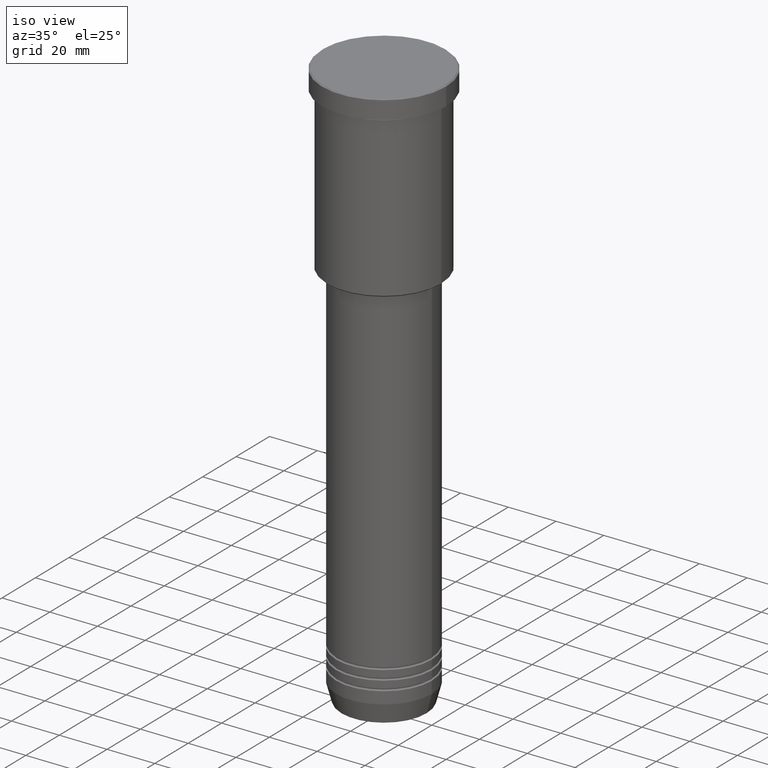
[diagram: clean part render]
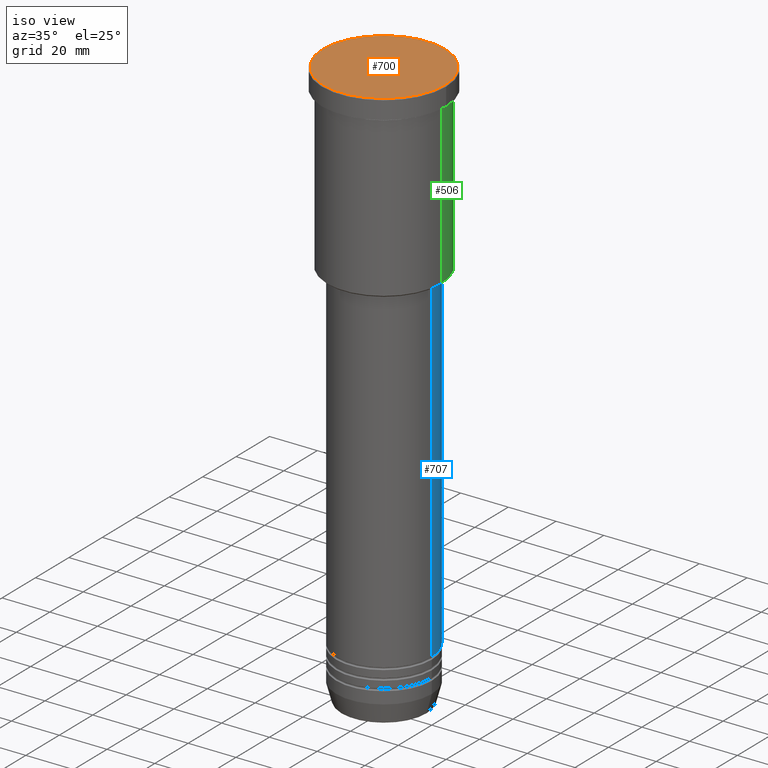
[diagram: same view with three faces highlighted in distinct colors, each labeled with its STEP entity id]
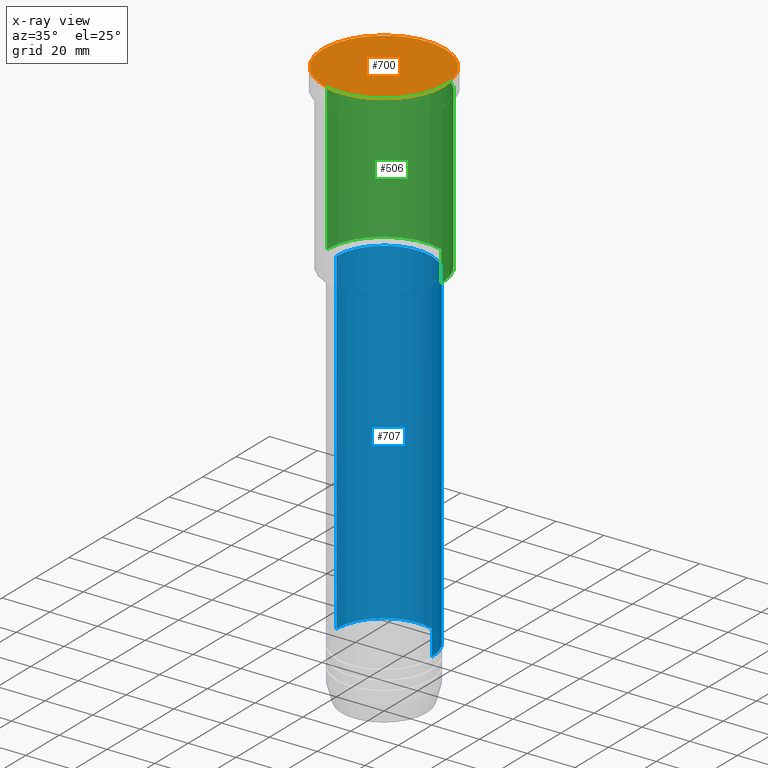
[diagram: x-ray of the same camera — body ghosted, the three highlighted faces saturated]
A machine part, iso view with three faces highlighted in distinct colors.
The next image is the same camera in x-ray (body ghosted, the three faces saturated) — at least one of them is partly hidden behind the body in this view.
Their STEP definitions:

[orange] entity #700 — the highlighted planar face has unit normal (0, -0, 1).
#20 = EDGE_CURVE ( 'NONE', #456, #934, #796, .T. ) ;
#78 = AXIS2_PLACEMENT_3D ( 'NONE', #632, #1006, #539 ) ;
#261 = AXIS2_PLACEMENT_3D ( 'NONE', #1162, #1144, #1049 ) ;
#384 = EDGE_CURVE ( 'NONE', #934, #456, #1016, .T. ) ;
#456 = VERTEX_POINT ( 'NONE', #613 ) ;
#539 = DIRECTION ( 'NONE',  ( 1.000000000000000000, 0.000000000000000000, 0.000000000000000000 ) ) ;
#563 = ORIENTED_EDGE ( 'NONE', *, *, #20, .T. ) ;
#613 = CARTESIAN_POINT ( 'NONE',  ( 25.50000000000000000, 3.153465507804434404E-15, 0.000000000000000000 ) ) ;
#632 = CARTESIAN_POINT ( 'NONE',  ( 0.000000000000000000, 0.000000000000000000, 0.000000000000000000 ) ) ;
#652 = DIRECTION ( 'NONE',  ( 1.000000000000000000, 0.000000000000000000, 0.000000000000000000 ) ) ;
#658 = CARTESIAN_POINT ( 'NONE',  ( 0.000000000000000000, 0.000000000000000000, 0.000000000000000000 ) ) ;
#700 = ADVANCED_FACE ( 'NONE', ( #781 ), #1043, .T. ) ;
#781 = FACE_OUTER_BOUND ( 'NONE', #1066, .T. ) ;
#796 = CIRCLE ( 'NONE', #1042, 25.50000000000000000 ) ;
#934 = VERTEX_POINT ( 'NONE', #1113 ) ;
#1005 = ORIENTED_EDGE ( 'NONE', *, *, #384, .T. ) ;
#1006 = DIRECTION ( 'NONE',  ( -0.000000000000000000, -0.000000000000000000, 1.000000000000000000 ) ) ;
#1016 = CIRCLE ( 'NONE', #78, 25.50000000000000000 ) ;
#1042 = AXIS2_PLACEMENT_3D ( 'NONE', #658, #1110, #652 ) ;
#1043 = PLANE ( 'NONE',  #261 ) ;
#1049 = DIRECTION ( 'NONE',  ( 1.000000000000000000, 0.000000000000000000, 0.000000000000000000 ) ) ;
#1066 = EDGE_LOOP ( 'NONE', ( #1005, #563 ) ) ;
#1110 = DIRECTION ( 'NONE',  ( -0.000000000000000000, -0.000000000000000000, 1.000000000000000000 ) ) ;
#1113 = CARTESIAN_POINT ( 'NONE',  ( -25.50000000000000000, 0.000000000000000000, 0.000000000000000000 ) ) ;
#1144 = DIRECTION ( 'NONE',  ( 0.000000000000000000, -0.000000000000000000, 1.000000000000000000 ) ) ;
#1162 = CARTESIAN_POINT ( 'NONE',  ( 0.000000000000000000, 0.000000000000000000, 0.000000000000000000 ) ) ;

[blue] entity #707 — the highlighted cylindrical surface (partial cylindrical patch) has radius 20 mm, axis along (-0, -0, 1).
#28 = DIRECTION ( 'NONE',  ( -0.000000000000000000, -0.000000000000000000, 1.000000000000000000 ) ) ;
#59 = DIRECTION ( 'NONE',  ( -0.000000000000000000, -0.000000000000000000, 1.000000000000000000 ) ) ;
#127 = CIRCLE ( 'NONE', #985, 20.00000000000000355 ) ;
#160 = EDGE_CURVE ( 'NONE', #400, #615, #569, .T. ) ;
#178 = LINE ( 'NONE', #611, #390 ) ;
#202 = ORIENTED_EDGE ( 'NONE', *, *, #959, .F. ) ;
#388 = CARTESIAN_POINT ( 'NONE',  ( 20.00000000000000355, 0.000000000000000000, 0.000000000000000000 ) ) ;
#390 = VECTOR ( 'NONE', #624, 1000.000000000000000 ) ;
#396 = VERTEX_POINT ( 'NONE', #718 ) ;
#400 = VERTEX_POINT ( 'NONE', #813 ) ;
#408 = CARTESIAN_POINT ( 'NONE',  ( -20.00000000000000355, 2.449293598294706907E-15, -218.0000000000000000 ) ) ;
#464 = DIRECTION ( 'NONE',  ( -0.000000000000000000, -0.000000000000000000, 1.000000000000000000 ) ) ;
#569 = LINE ( 'NONE', #388, #1116 ) ;
#578 = CYLINDRICAL_SURFACE ( 'NONE', #846, 20.00000000000000355 ) ;
#594 = FACE_OUTER_BOUND ( 'NONE', #902, .T. ) ;
#596 = ORIENTED_EDGE ( 'NONE', *, *, #160, .F. ) ;
#611 = CARTESIAN_POINT ( 'NONE',  ( -20.00000000000000355, 2.449293598294706907E-15, 0.000000000000000000 ) ) ;
#615 = VERTEX_POINT ( 'NONE', #761 ) ;
#624 = DIRECTION ( 'NONE',  ( -0.000000000000000000, -0.000000000000000000, 1.000000000000000000 ) ) ;
#672 = AXIS2_PLACEMENT_3D ( 'NONE', #1077, #899, #804 ) ;
#675 = CARTESIAN_POINT ( 'NONE',  ( 0.000000000000000000, 0.000000000000000000, 0.000000000000000000 ) ) ;
#699 = ORIENTED_EDGE ( 'NONE', *, *, #879, .T. ) ;
#707 = ADVANCED_FACE ( 'NONE', ( #594 ), #578, .T. ) ;
#718 = CARTESIAN_POINT ( 'NONE',  ( -20.00000000000000355, 2.449293598294706907E-15, -76.99999999999998579 ) ) ;
#728 = CIRCLE ( 'NONE', #672, 20.00000000000000355 ) ;
#753 = ORIENTED_EDGE ( 'NONE', *, *, #793, .T. ) ;
#761 = CARTESIAN_POINT ( 'NONE',  ( 20.00000000000000355, 0.000000000000000000, -76.99999999999998579 ) ) ;
#793 = EDGE_CURVE ( 'NONE', #400, #1119, #728, .T. ) ;
#804 = DIRECTION ( 'NONE',  ( 1.000000000000000000, 0.000000000000000000, 0.000000000000000000 ) ) ;
#813 = CARTESIAN_POINT ( 'NONE',  ( 20.00000000000000355, 0.000000000000000000, -218.0000000000000000 ) ) ;
#846 = AXIS2_PLACEMENT_3D ( 'NONE', #675, #59, #1057 ) ;
#879 = EDGE_CURVE ( 'NONE', #1119, #396, #178, .T. ) ;
#899 = DIRECTION ( 'NONE',  ( -0.000000000000000000, -0.000000000000000000, 1.000000000000000000 ) ) ;
#902 = EDGE_LOOP ( 'NONE', ( #753, #699, #202, #596 ) ) ;
#914 = DIRECTION ( 'NONE',  ( 1.000000000000000000, 0.000000000000000000, 0.000000000000000000 ) ) ;
#959 = EDGE_CURVE ( 'NONE', #615, #396, #127, .T. ) ;
#985 = AXIS2_PLACEMENT_3D ( 'NONE', #1030, #464, #914 ) ;
#1030 = CARTESIAN_POINT ( 'NONE',  ( 0.000000000000000000, 0.000000000000000000, -76.99999999999998579 ) ) ;
#1057 = DIRECTION ( 'NONE',  ( 1.000000000000000000, 0.000000000000000000, 0.000000000000000000 ) ) ;
#1077 = CARTESIAN_POINT ( 'NONE',  ( 0.000000000000000000, 0.000000000000000000, -218.0000000000000000 ) ) ;
#1116 = VECTOR ( 'NONE', #28, 1000.000000000000000 ) ;
#1119 = VERTEX_POINT ( 'NONE', #408 ) ;

[green] entity #506 — the highlighted cylindrical surface (partial cylindrical patch) has radius 24 mm, axis along (-0, -0, 1).
#1 = EDGE_LOOP ( 'NONE', ( #2, #221, #915, #636 ) ) ;
#2 = ORIENTED_EDGE ( 'NONE', *, *, #1177, .T. ) ;
#26 = LINE ( 'NONE', #212, #863 ) ;
#41 = AXIS2_PLACEMENT_3D ( 'NONE', #320, #427, #599 ) ;
#86 = DIRECTION ( 'NONE',  ( -1.000000000000000000, 0.000000000000000000, 0.000000000000000000 ) ) ;
#99 = CARTESIAN_POINT ( 'NONE',  ( 0.000000000000000000, 0.000000000000000000, 0.000000000000000000 ) ) ;
#109 = LINE ( 'NONE', #117, #709 ) ;
#117 = CARTESIAN_POINT ( 'NONE',  ( 24.00000000000000000, 0.000000000000000000, 0.000000000000000000 ) ) ;
#121 = DIRECTION ( 'NONE',  ( -0.000000000000000000, -0.000000000000000000, 1.000000000000000000 ) ) ;
#212 = CARTESIAN_POINT ( 'NONE',  ( -24.00000000000000000, 2.939152317953647894E-15, 0.000000000000000000 ) ) ;
#221 = ORIENTED_EDGE ( 'NONE', *, *, #964, .T. ) ;
#257 = EDGE_CURVE ( 'NONE', #440, #887, #762, .T. ) ;
#258 = CARTESIAN_POINT ( 'NONE',  ( -24.00000000000000000, 2.939152317953647894E-15, -75.50000000000000000 ) ) ;
#280 = DIRECTION ( 'NONE',  ( 1.000000000000000000, 0.000000000000000000, 0.000000000000000000 ) ) ;
#320 = CARTESIAN_POINT ( 'NONE',  ( 0.000000000000000000, 0.000000000000000000, -8.999999999999994671 ) ) ;
#427 = DIRECTION ( 'NONE',  ( -0.000000000000000000, -0.000000000000000000, 1.000000000000000000 ) ) ;
#440 = VERTEX_POINT ( 'NONE', #1083 ) ;
#477 = DIRECTION ( 'NONE',  ( -0.000000000000000000, -0.000000000000000000, 1.000000000000000000 ) ) ;
#482 = FACE_OUTER_BOUND ( 'NONE', #1, .T. ) ;
#506 = ADVANCED_FACE ( 'NONE', ( #482 ), #553, .T. ) ;
#553 = CYLINDRICAL_SURFACE ( 'NONE', #1129, 24.00000000000000000 ) ;
#557 = CIRCLE ( 'NONE', #926, 24.00000000000000000 ) ;
#599 = DIRECTION ( 'NONE',  ( 1.000000000000000000, 0.000000000000000000, 0.000000000000000000 ) ) ;
#636 = ORIENTED_EDGE ( 'NONE', *, *, #937, .F. ) ;
#709 = VECTOR ( 'NONE', #477, 1000.000000000000000 ) ;
#714 = CARTESIAN_POINT ( 'NONE',  ( 0.000000000000000000, 0.000000000000000000, -75.50000000000000000 ) ) ;
#762 = CIRCLE ( 'NONE', #41, 24.00000000000000000 ) ;
#779 = DIRECTION ( 'NONE',  ( -0.000000000000000000, -0.000000000000000000, 1.000000000000000000 ) ) ;
#780 = VERTEX_POINT ( 'NONE', #258 ) ;
#863 = VECTOR ( 'NONE', #121, 1000.000000000000000 ) ;
#887 = VERTEX_POINT ( 'NONE', #990 ) ;
#915 = ORIENTED_EDGE ( 'NONE', *, *, #257, .F. ) ;
#926 = AXIS2_PLACEMENT_3D ( 'NONE', #714, #779, #86 ) ;
#937 = EDGE_CURVE ( 'NONE', #962, #440, #109, .T. ) ;
#941 = DIRECTION ( 'NONE',  ( -0.000000000000000000, -0.000000000000000000, 1.000000000000000000 ) ) ;
#962 = VERTEX_POINT ( 'NONE', #1101 ) ;
#964 = EDGE_CURVE ( 'NONE', #780, #887, #26, .T. ) ;
#990 = CARTESIAN_POINT ( 'NONE',  ( -24.00000000000000000, 2.939152317953647894E-15, -8.999999999999994671 ) ) ;
#1083 = CARTESIAN_POINT ( 'NONE',  ( 24.00000000000000000, 0.000000000000000000, -8.999999999999994671 ) ) ;
#1101 = CARTESIAN_POINT ( 'NONE',  ( 24.00000000000000000, 0.000000000000000000, -75.50000000000000000 ) ) ;
#1129 = AXIS2_PLACEMENT_3D ( 'NONE', #99, #941, #280 ) ;
#1177 = EDGE_CURVE ( 'NONE', #962, #780, #557, .T. ) ;